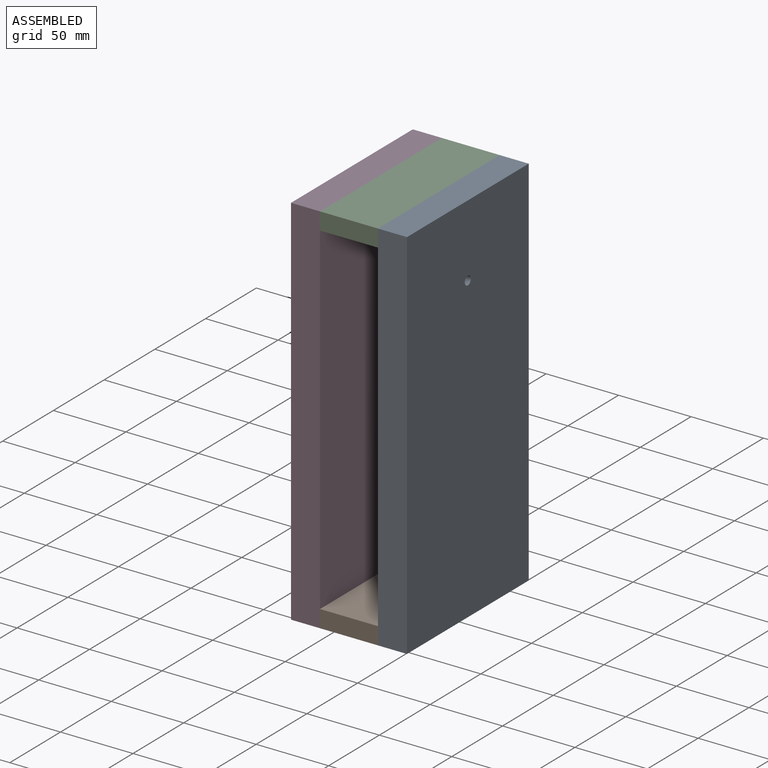
[diagram: assembled view]
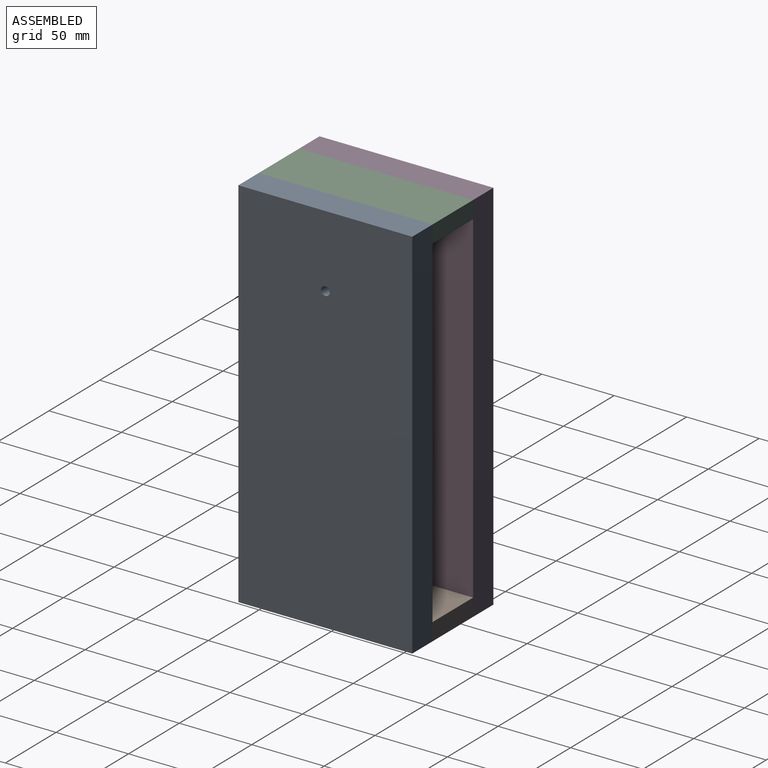
[diagram: assembled view, second angle]
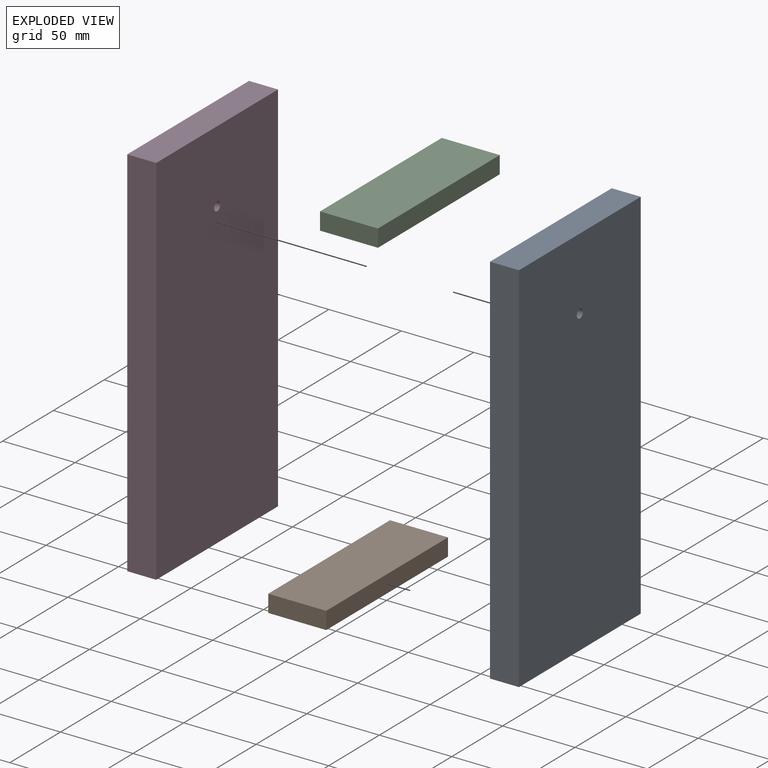
[diagram: exploded view]
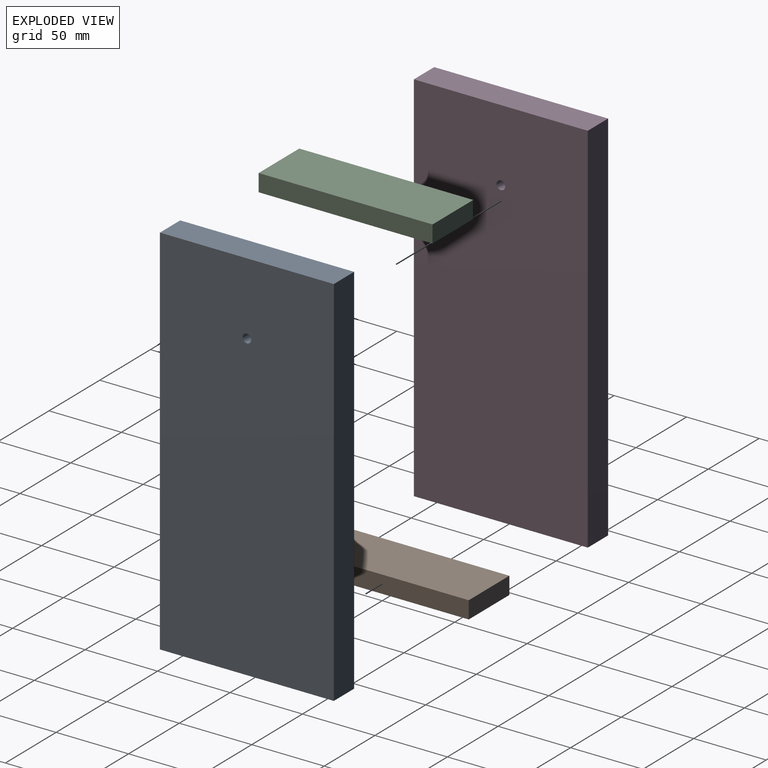
[diagram: exploded view, second angle]
ASSEMBLY  parts=4 mates=3
PART A: 7 faces, bbox 120x260x20 mm
  f0: plane 260x120mm, normal (0,0,1), area 31171.7mm2, adj f1,f3,f4,f5,f6
  f1: plane 260x20mm, normal (-1,0,0), area 5200mm2, adj f0,f2,f4,f5
  f2: plane 260x120mm, normal (0,0,-1), area 31171.7mm2, adj f1,f3,f4,f5,f6
  f3: plane 260x20mm, normal (1,0,0), area 5200mm2, adj f0,f2,f4,f5
  f4: plane 120x20mm, normal (0,-1,0), area 2400mm2, adj f0,f1,f2,f3
  f5: plane 120x20mm, normal (0,1,0), area 2400mm2, adj f0,f1,f2,f3
  f6: cylinder r=3mm len=20mm, axis (0,0,1), area 377mm2, adj f0,f2
PART B: 6 faces, bbox 12x120x40 mm
  f0: plane 120x40mm, normal (1,0,0), area 4800mm2, adj f1,f3,f4,f5
  f1: plane 120x12mm, normal (0,0,1), area 1440mm2, adj f0,f2,f4,f5
  f2: plane 120x40mm, normal (-1,0,0), area 4800mm2, adj f1,f3,f4,f5
  f3: plane 120x12mm, normal (0,0,-1), area 1440mm2, adj f0,f2,f4,f5
  f4: plane 40x12mm, normal (0,-1,0), area 480mm2, adj f0,f1,f2,f3
  f5: plane 40x12mm, normal (0,1,0), area 480mm2, adj f0,f1,f2,f3
PART C: same geometry as B
PART D: same geometry as A
PLACE A rot(axis=(0.58,-0.58,-0.58),120deg) t=(-91.38,-0.96,134.06)mm fixed
PLACE B rot(axis=(-0.71,0,-0.71),180deg) t=(-35.62,-60,-107.71)mm
PLACE C rot(axis=(0,1,0),90deg) t=(-35.62,60,115.82)mm
PLACE D rot(axis=(0.58,0.58,0.58),120deg) t=(23.48,0.95,134.06)mm
MATE fastened C.f1 <-> A.f0  axis (1,0,0) through (-13.95,0,134.06)mm
MATE fastened D.f0 <-> C.f3  axis (1,0,0) through (-53.95,0,134.06)mm
MATE fastened B.f1 <-> A.f0  axis (1,0,0) through (-13.95,0,-125.94)mm
